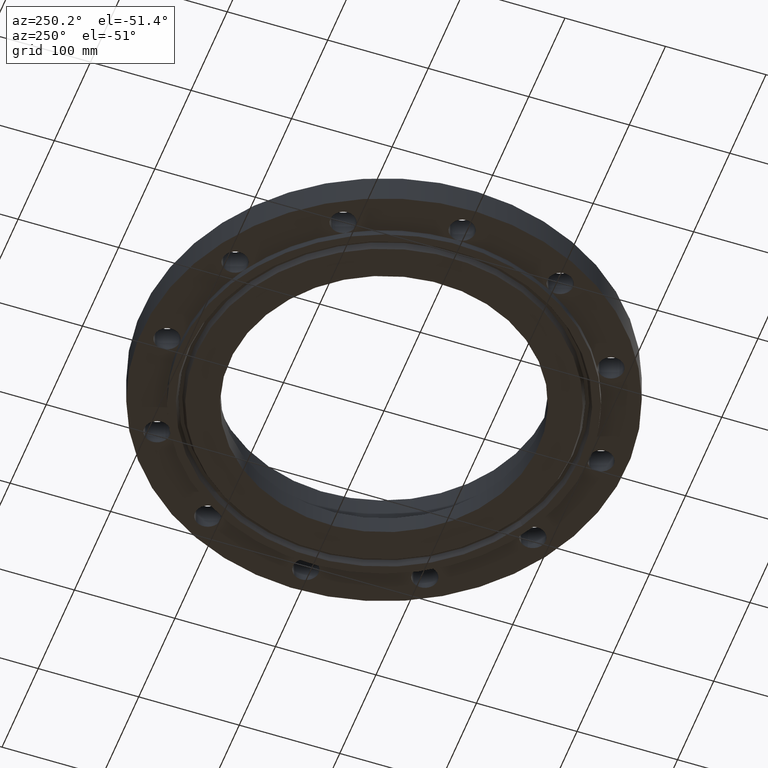
[diagram: clean part render]
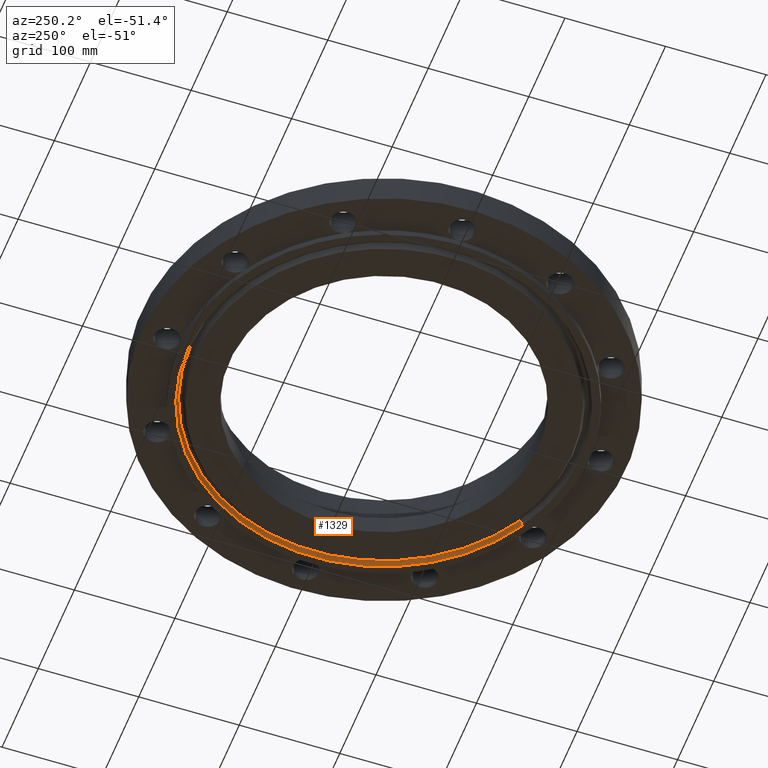
[diagram: same view with one face highlighted and labeled with its STEP entity id]
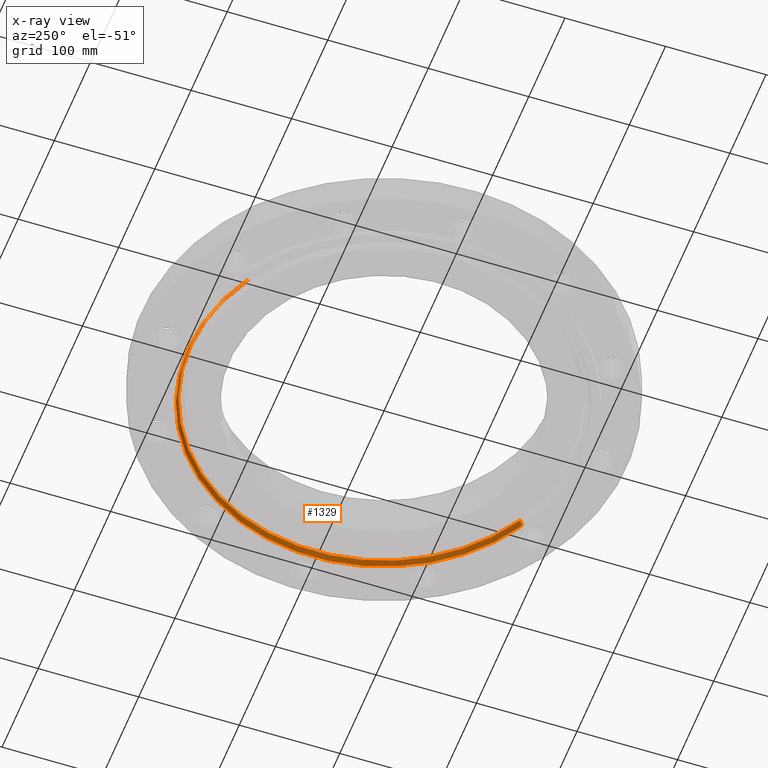
[diagram: x-ray of the same camera — body ghosted, the highlighted face saturated]
A machine part, auxiliary view. The second image highlights one B-rep face of the part: STEP entity #1329.
The next image is the same camera in x-ray: the body ghosted, the highlighted face saturated — about 0% of this face is hidden behind the body in this view.
In plain terms, the highlighted conical surface has half-angle 23 deg.
Its self-contained STEP definition (entity closure, byte-faithful):
#220=AXIS2_PLACEMENT_3D('Circle Axis2P3D',#218,#219,$) ;
#1302=AXIS2_PLACEMENT_3D('Cone Axis2P3D',#1299,#1300,#1301) ;
#1313=AXIS2_PLACEMENT_3D('Circle Axis2P3D',#1311,#1312,$) ;
#213=CARTESIAN_POINT('Vertex',(3.67809280399,-6.73270371703,-0.250000000001)) ;
#215=CARTESIAN_POINT('Vertex',(-3.67809280399,6.73270371703,-0.250000000001)) ;
#218=CARTESIAN_POINT('Axis2P3D Location',(-5.59482469102E-016,0.,-0.250000000001)) ;
#1299=CARTESIAN_POINT('Axis2P3D Location',(0.,0.,-0.0190396522348)) ;
#1304=CARTESIAN_POINT('Line Origine',(3.65459211891,-6.68968600153,-0.134519826118)) ;
#1308=CARTESIAN_POINT('Vertex',(3.63109143382,-6.64666828602,-0.0190396522348)) ;
#1311=CARTESIAN_POINT('Axis2P3D Location',(0.,0.,-0.0190396522348)) ;
#1315=CARTESIAN_POINT('Vertex',(-3.63109143382,6.64666828602,-0.0190396522348)) ;
#1318=CARTESIAN_POINT('Line Origine',(-3.65459211891,6.68968600153,-0.134519826118)) ;
#219=DIRECTION('Axis2P3D Direction',(0.,0.,-0.0393700787402)) ;
#1300=DIRECTION('Axis2P3D Direction',(-0.,-0.,-0.0393700787402)) ;
#1301=DIRECTION('Axis2P3D XDirection',(0.0188750212049,-0.0345504945626,0.)) ;
#1305=DIRECTION('Vector Direction',(0.00737505833565,-0.0134999537303,-0.0362403485611)) ;
#1312=DIRECTION('Axis2P3D Direction',(0.,0.,-0.0393700787402)) ;
#1319=DIRECTION('Vector Direction',(-0.00737505833565,0.0134999537303,-0.0362403485611)) ;
#1306=VECTOR('Line Direction',#1305,0.0393700787402) ;
#1320=VECTOR('Line Direction',#1319,0.0393700787402) ;
#1324=ORIENTED_EDGE('',*,*,#222,.T.) ;
#1325=ORIENTED_EDGE('',*,*,#1310,.T.) ;
#1326=ORIENTED_EDGE('',*,*,#1317,.T.) ;
#1327=ORIENTED_EDGE('',*,*,#1322,.F.) ;
#1329=ADVANCED_FACE('PartBody',(#1328),#1303,.F.) ;
#221=CIRCLE('generated circle',#220,7.67187500003) ;
#1314=CIRCLE('generated circle',#1313,7.57383814886) ;
#1303=CONICAL_SURFACE('Cone',#1302,7.57383814886,0.401425727959) ;
#222=EDGE_CURVE('',#216,#214,#221,.T.) ;
#1310=EDGE_CURVE('',#214,#1309,#1307,.F.) ;
#1317=EDGE_CURVE('',#1309,#1316,#1314,.F.) ;
#1322=EDGE_CURVE('',#216,#1316,#1321,.F.) ;
#1323=EDGE_LOOP('',(#1324,#1325,#1326,#1327)) ;
#1328=FACE_OUTER_BOUND('',#1323,.T.) ;
#1307=LINE('Line',#1304,#1306) ;
#1321=LINE('Line',#1318,#1320) ;
#214=VERTEX_POINT('',#213) ;
#216=VERTEX_POINT('',#215) ;
#1309=VERTEX_POINT('',#1308) ;
#1316=VERTEX_POINT('',#1315) ;